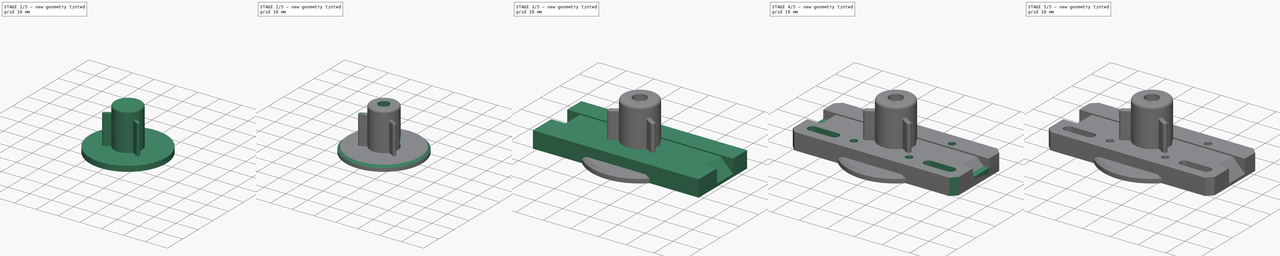
[diagram: build sequence overview — one tinted view per stage of 5, left to right]
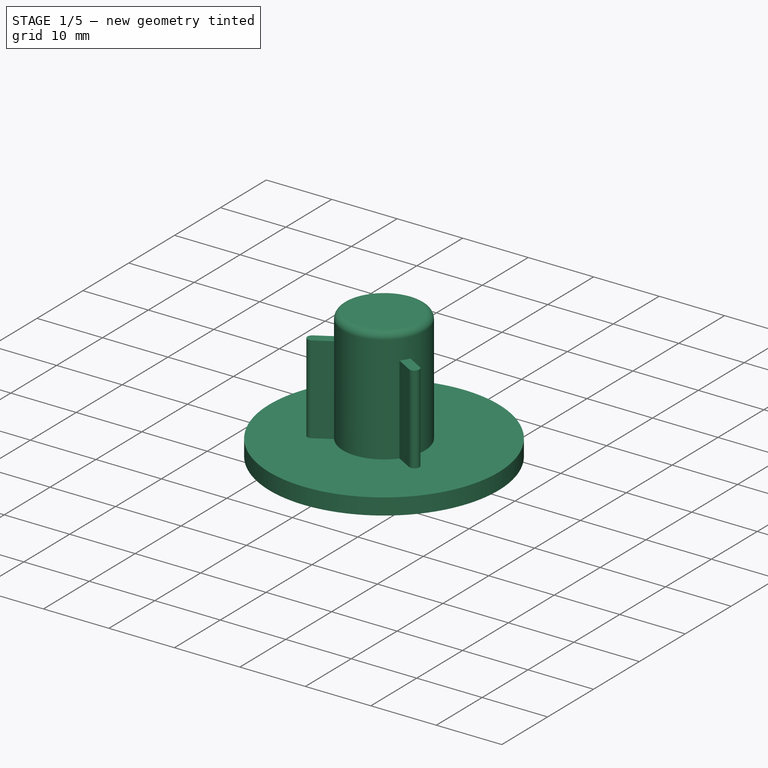
[diagram: stage 1 of 5 — iso view after this stage's code; geometry added in this stage tinted green]
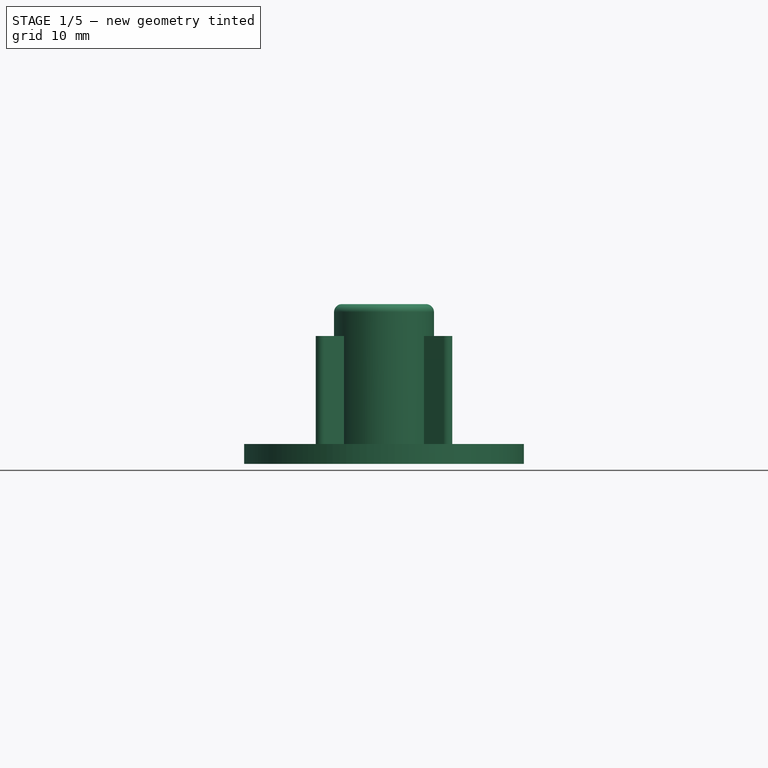
[diagram: stage 1 of 5 — front view after this stage's code; geometry added in this stage tinted green]
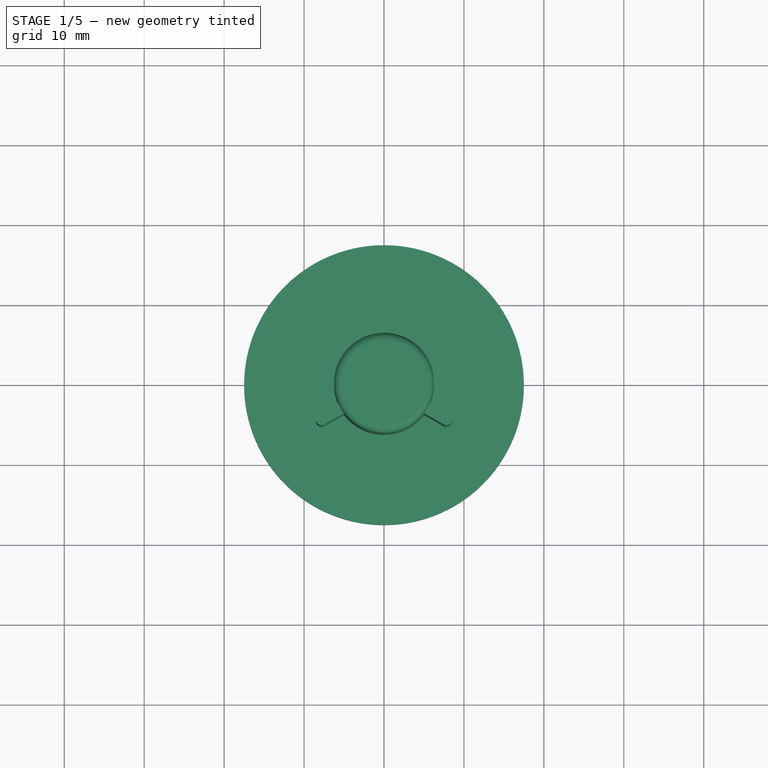
[diagram: stage 1 of 5 — top view after this stage's code; geometry added in this stage tinted green]
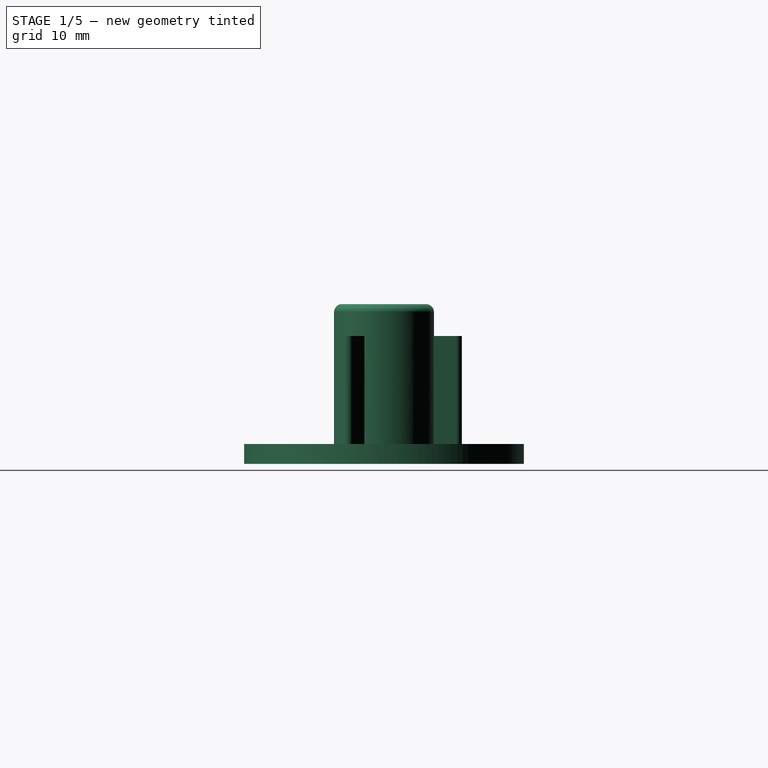
[diagram: stage 1 of 5 — right view after this stage's code; geometry added in this stage tinted green]
FCSTD DOCUMENT  (FreeCAD 2021.1015R24301 +4280 (Git))
Label: Super8FilmScanner
License: All rights reserved
LicenseURL: http://en.wikipedia.org/wiki/All_rights_reserved
objects: Sketcher::SketchObject×14, PartDesign::Pocket×7, PartDesign::Pad×5, PartDesign::Chamfer×5, PartDesign::Body×3, PartDesign::Hole×2, PartDesign::Fillet×1, PartDesign::Plane×1
note: 78 computed .brp shape members not serialized (recipe doc carries the construction recipe); baked Part::Feature solids carry a one-line shape summary decoded from their .brp

FEATURE [Sketcher::SketchObject] Sketch007
  FullyConstrained = true
  MapMode = 5
  Support = -> [XY_Plane002]
  sketch-geometry (1):
    g0: Circle CenterX=0 CenterY=0 CenterZ=0 NormalX=0 NormalY=0 NormalZ=1 AngleXU=0 Radius=6.25
  constraints (2):
    c: Coincident(g0,g-1)
    c: Diameter(g0) = 12.5
FEATURE [PartDesign::Pad] Pad002
  AddSubType = 0
  CheckUpToFaceLimits = true
  ClaimChildren = false
  Direction = (1,1,1)
  Fit = 0
  FitJoin = 0
  InnerFit = 0
  InnerFitJoin = 0
  InnerTaperAngle = 0
  InnerTaperAngleRev = 0
  Length = 20
  Length2 = 100
  Linearize = true
  NewSolid = false
  Profile = -> Sketch007
  Suppress = false
  Type = 0
  _ProfileBasedVersion = 1
FEATURE [Sketcher::SketchObject] Sketch008
  FullyConstrained = true
  MapMode = 5
  Support = -> [XY_Plane002]
  sketch-geometry (17):
    g0: LineSegment StartX=-0.75 StartY=0.433014 StartZ=0 EndX=-0.75 EndY=9 EndZ=0
    g1: LineSegment StartX=0.75 StartY=9 StartZ=0 EndX=0.75 EndY=0.433014 EndZ=0
    g2: LineSegment StartX=0.75 StartY=0.433014 StartZ=0 EndX=8.16922 EndY=-3.8505 EndZ=0
    g3: LineSegment StartX=7.41922 StartY=-5.14953 StartZ=0 EndX=0 EndY=-0.866024 EndZ=0
    g4: Circle [constr] CenterX=0 CenterY=0 CenterZ=0 NormalX=0 NormalY=0 NormalZ=1 AngleXU=0 Radius=6.25
    g5: Circle [constr] CenterX=0 CenterY=0 CenterZ=0 NormalX=0 NormalY=0 NormalZ=1 AngleXU=0 Radius=9.75
    g6: ArcOfCircle CenterX=0 CenterY=9 CenterZ=0 NormalX=0 NormalY=0 NormalZ=1 AngleXU=0 Radius=0.75 StartAngle=-9e-16 EndAngle=3.14159
    g7: ArcOfCircle CenterX=-7.79424 CenterY=-4.49998 CenterZ=0 NormalX=0 NormalY=0 NormalZ=1 AngleXU=0 Radius=0.75 StartAngle=2.09439 EndAngle=5.23599
    g8: ArcOfCircle CenterX=7.79422 CenterY=-4.50002 CenterZ=0 NormalX=0 NormalY=0 NormalZ=1 AngleXU=0 Radius=0.75 StartAngle=4.18879 EndAngle=7.33038
    g9: LineSegment [constr] StartX=0 StartY=0 StartZ=0 EndX=8.44374 EndY=-4.87502 EndZ=0
    g10: LineSegment [constr] StartX=0 StartY=0 StartZ=0 EndX=-8.44376 EndY=-4.87498 EndZ=0
    g11: GeomPoint [constr] X=0 Y=9.75 Z=0
    g12: LineSegment StartX=-8.16924 StartY=-3.85046 StartZ=0 EndX=-0.75 EndY=0.433014 EndZ=0
    g13: LineSegment StartX=-7.41924 StartY=-5.1495 StartZ=0 EndX=0 EndY=-0.866024 EndZ=0
    g14: LineSegment [constr] StartX=-0.75 StartY=0.433014 StartZ=0 EndX=0.75 EndY=0.433014 EndZ=0
    g15: LineSegment [constr] StartX=0 StartY=-0.866024 StartZ=0 EndX=0.75 EndY=0.433014 EndZ=0
    g16: LineSegment [constr] StartX=0 StartY=-0.866024 StartZ=0 EndX=-0.75 EndY=0.433014 EndZ=0
  constraints (45):
    c: Vertical(g0)
    c: Vertical(g1)
    c: Symmetric(g0,g1,g-2)
    c: DistanceX(g0,g1) = 1.5
    c: Coincident(g4,g-1)
    c: Diameter(g4) = 12.5
    c: Horizontal(g1,g0)
    c: Coincident(g5,g4)
    c: Diameter(g5) = 19.5
    c: Coincident(g6,g0)
    c: Coincident(g6,g1)
    c: Coincident(g8,g3)
    c: Coincident(g8,g2)
    c: Coincident(g9,g4)
    c: Coincident(g10,g9)
    c: Horizontal(g0,g6)
    c: PointOnObject(g11,g6)
    c: Vertical(g11,g4)
    c: PointOnObject(g11,g5)
    c: Distance(g3,g2) = 1.5
    c: Distance(g7,g7) = 1.5
    c: PointOnObject(g10,g5)
    c: PointOnObject(g9,g5)
    c: Symmetric(g3,g2,g9)
    c: Parallel(g3,g2)
    c: Symmetric(g7,g7,g10)
    c: PointOnObject(g9,g8)
    c: Coincident(g12,g7)
    c: Coincident(g13,g7)
    c: Parallel(g13,g12)
    c: Parallel(g12,g10)
    c: PointOnObject(g10,g7)
    c: Coincident(g2,g1)
    c: Coincident(g3,g13)
    c: Coincident(g12,g0)
    c: Diameter(g7) = 1.5
    c: Diameter(g8) = 1.5
    c: Coincident(g14,g0)
    c: Coincident(g14,g1)
    c: Coincident(g15,g3)
    c: Coincident(g15,g1)
    c: Coincident(g16,g3)
    c: Coincident(g16,g0)
    c: Vertical(g16,g4)
    c: Equal(g15,g14)
FEATURE [Sketcher::SketchObject] Sketch009
  FullyConstrained = true
  Placement = pos=(0,0,20) rot=(0,0,1;0.523599rad)
  sketch-geometry (3):
    g0: Circle [constr] CenterX=0 CenterY=0 CenterZ=0 NormalX=0 NormalY=0 NormalZ=1 AngleXU=0 Radius=2.5
    g1: ArcOfCircle CenterX=1e-16 CenterY=-2e-16 CenterZ=0 NormalX=0 NormalY=0 NormalZ=1 AngleXU=0 Radius=2.5 StartAngle=0.451027 EndAngle=5.83216
    g2: LineSegment StartX=2.25 StartY=1.08972 StartZ=0 EndX=2.25 EndY=-1.08972 EndZ=0
  constraints (9):
    c: Coincident(g0,g-1)
    c: Diameter(g0) = 5
    c: PointOnObject(g1,g0)
    c: PointOnObject(g1,g0)
    c: Tangent(g1,g0)
    c: Coincident(g2,g1)
    c: Coincident(g2,g1)
    c: Vertical(g2)
    c: DistanceX(g1,g1) = 2.25
FEATURE [Sketcher::SketchObject] Sketch010  label="OuterCircle"
  FullyConstrained = true
  MapMode = 5
  Support = -> [XY_Plane002]
  sketch-geometry (1):
    g0: Circle CenterX=0 CenterY=0 CenterZ=0 NormalX=0 NormalY=0 NormalZ=1 AngleXU=0 Radius=17.5
  constraints (2):
    c: Coincident(g0,g-1)
    c: Diameter(g0) = 35
FEATURE [PartDesign::Pad] Pad004
  AddSubType = 0
  BaseFeature = -> Pad002
  CheckUpToFaceLimits = true
  ClaimChildren = false
  Direction = (1,1,1)
  Fit = 0
  FitJoin = 0
  InnerFit = 0
  InnerFitJoin = 0
  InnerTaperAngle = 0
  InnerTaperAngleRev = 0
  Length = 2.5
  Length2 = 100
  Linearize = true
  NewSolid = false
  Profile = -> Sketch010
  Suppress = false
  Type = 0
  _ProfileBasedVersion = 1
FEATURE [PartDesign::Pad] Pad003
  AddSubType = 0
  BaseFeature = -> Pad004
  CheckUpToFaceLimits = true
  ClaimChildren = false
  Direction = (1,1,1)
  Fit = 0
  FitJoin = 0
  InnerFit = 0
  InnerFitJoin = 0
  InnerTaperAngle = 0
  InnerTaperAngleRev = 0
  Length = 16
  Length2 = 100
  Linearize = true
  NewSolid = false
  Profile = -> Sketch008
  Suppress = false
  Type = 0
  _ProfileBasedVersion = 1
FEATURE [PartDesign::Fillet] Fillet
  AddSubType = 0
  Base = -> Pad003 [Face21]
  BaseFeature = -> Pad003
  NewSolid = false
  Radius = 1
  SupportTransform = false
  Suppress = false
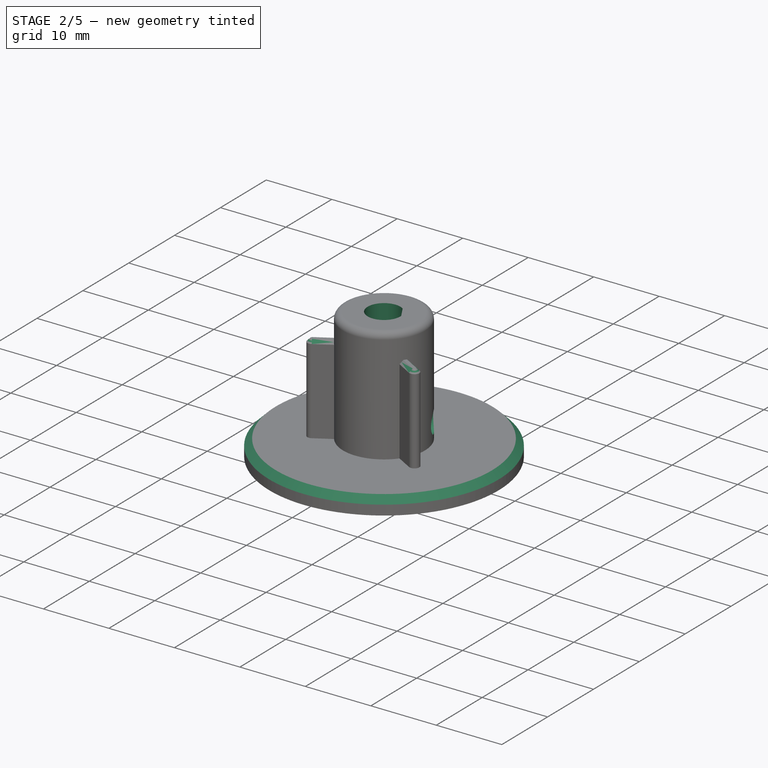
[diagram: stage 2 of 5 — iso view after this stage's code; geometry added in this stage tinted green]
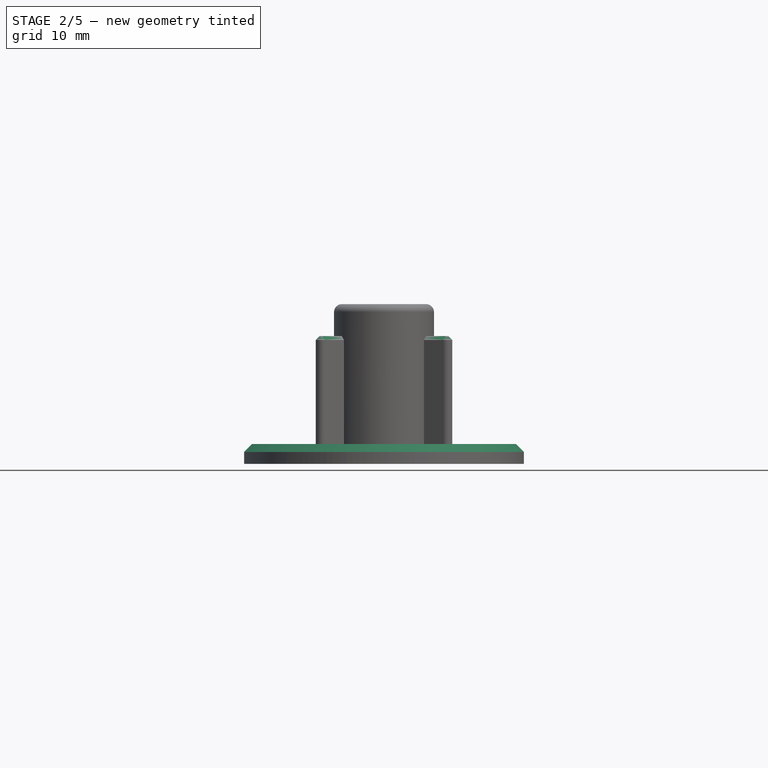
[diagram: stage 2 of 5 — front view after this stage's code; geometry added in this stage tinted green]
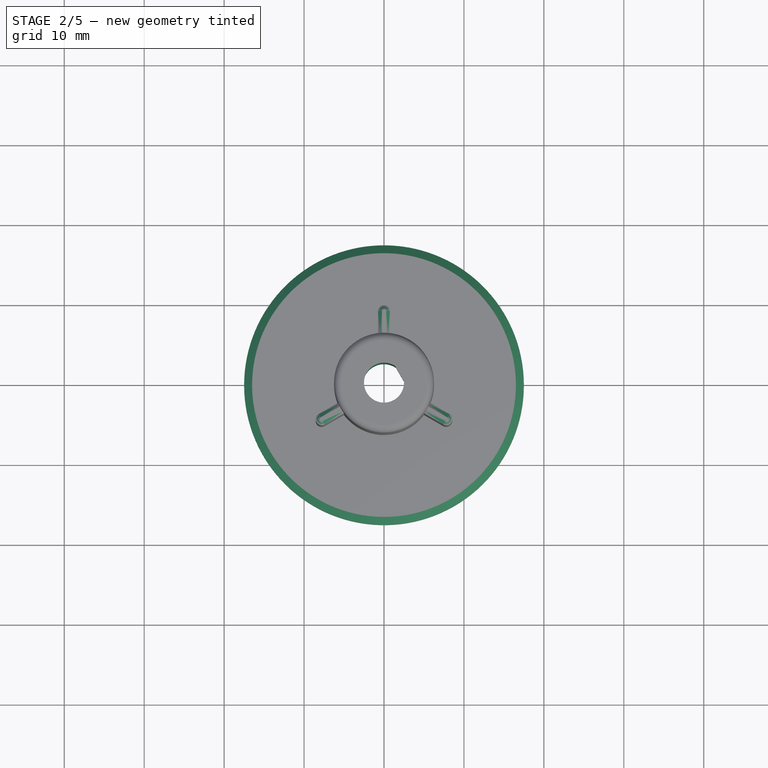
[diagram: stage 2 of 5 — top view after this stage's code; geometry added in this stage tinted green]
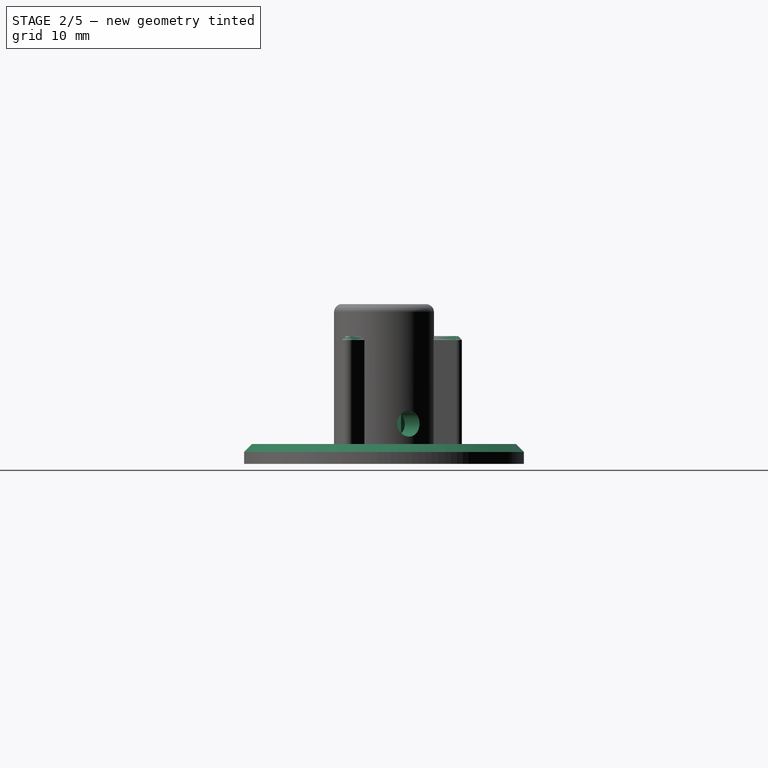
[diagram: stage 2 of 5 — right view after this stage's code; geometry added in this stage tinted green]
FEATURE [PartDesign::Chamfer] Chamfer003
  AddSubType = 0
  Angle = 45
  Base = -> Fillet [Edge30,Edge36,Edge41]
  BaseFeature = -> Fillet
  ChamferType = 2
  FlipDirection = false
  NewSolid = false
  Size = 0.5
  Size2 = 1
  SupportTransform = false
  Suppress = false
FEATURE [PartDesign::Chamfer] Chamfer004
  AddSubType = 0
  Angle = 45
  Base = -> Chamfer003 [Edge27]
  BaseFeature = -> Chamfer003
  ChamferType = 0
  FlipDirection = false
  NewSolid = false
  Size = 1
  Size2 = 1
  SupportTransform = false
  Suppress = false
FEATURE [PartDesign::Pocket] Pocket003
  AddSubType = 1
  BaseFeature = -> Chamfer004
  CheckUpToFaceLimits = true
  ClaimChildren = false
  Fit = 0
  FitJoin = 2
  InnerFit = 0
  InnerFitJoin = 0
  InnerTaperAngle = 0
  InnerTaperAngleRev = 0
  Length = 20
  Length2 = 100
  Linearize = true
  NewSolid = false
  Profile = -> Sketch009
  Suppress = false
  TaperAngle = 0.4
  Type = 0
  _ProfileBasedVersion = 1
  _Version = 1
FEATURE [PartDesign::Body] Body  label="Body-Gate-Back"
  AutoGroupSolids = false
  ExportMode = 0
  Group = -> [Sketch,Pad,Sketch001,Pocket,Sketch002,Pocket001,Chamfer,Sketch006,Hole001,Chamfer002,Sketch015,Pocket006]
  Origin = -> Origin
  Tip = -> Pocket006
  _ExportChildren = -> [Pad,Pocket,Pocket001,Chamfer,Hole001,Chamfer002,Pocket006]
  _GroupVersion = 1
FEATURE [PartDesign::Plane] DatumPlane001
  AttachmentOffset = pos=(0,0,-5) rot=(0,0,1;0rad)
  Length = 47.7614
  MapMode = 5
  MinimumLength = 10
  MinimumWidth = 10
  Placement = pos=(6.3994,3.6947,0.0515885) rot=(0.775304,-0.449707,-0.443472;1.8271rad)
  ResizeMode = 0
  Support = -> [Pocket003]
  Width = 20.2815
FEATURE [Sketcher::SketchObject] Sketch016
  FullyConstrained = true
  MapMode = 5
  Placement = pos=(6.3994,3.6947,0.0515885) rot=(0.775304,-0.449707,-0.443472;1.8271rad)
  Support = -> [DatumPlane001]
  sketch-geometry (1):
    g0: Circle CenterX=0 CenterY=5 CenterZ=0 NormalX=0 NormalY=0 NormalZ=1 AngleXU=0 Radius=1.625
  constraints (3):
    c: PointOnObject(g0,g-2)
    c: Diameter(g0) = 3.25
    c: DistanceY(g-1,g0) = 5
FEATURE [PartDesign::Pocket] Pocket007
  AddSubType = 1
  BaseFeature = -> Pocket003
  CheckUpToFaceLimits = true
  ClaimChildren = false
  Fit = 0
  FitJoin = 0
  InnerFit = 0
  InnerFitJoin = 0
  InnerTaperAngle = 0
  InnerTaperAngleRev = 0
  Length = 5
  Length2 = 100
  Linearize = true
  NewSolid = false
  Profile = -> Sketch016
  Reversed = true
  Suppress = false
  Type = 0
  _ProfileBasedVersion = 1
  _Version = 1
FEATURE [PartDesign::Body] Body002  label="Body-TapeWheel"
  AutoGroupSolids = false
  ExportMode = 0
  Group = -> [Sketch007,Pad002,Pad004,Sketch008,Pad003,Fillet,Sketch009,Chamfer003,Sketch010,Chamfer004,Pocket003,DatumPlane001,Sketch016,Pocket007]
  Origin = -> Origin002
  Tip = -> Pocket007
  _ExportChildren = -> [Pad002,Pad004,Pad003,Fillet,Chamfer003,Chamfer004,Pocket003,DatumPlane001,Pocket007]
  _GroupVersion = 1
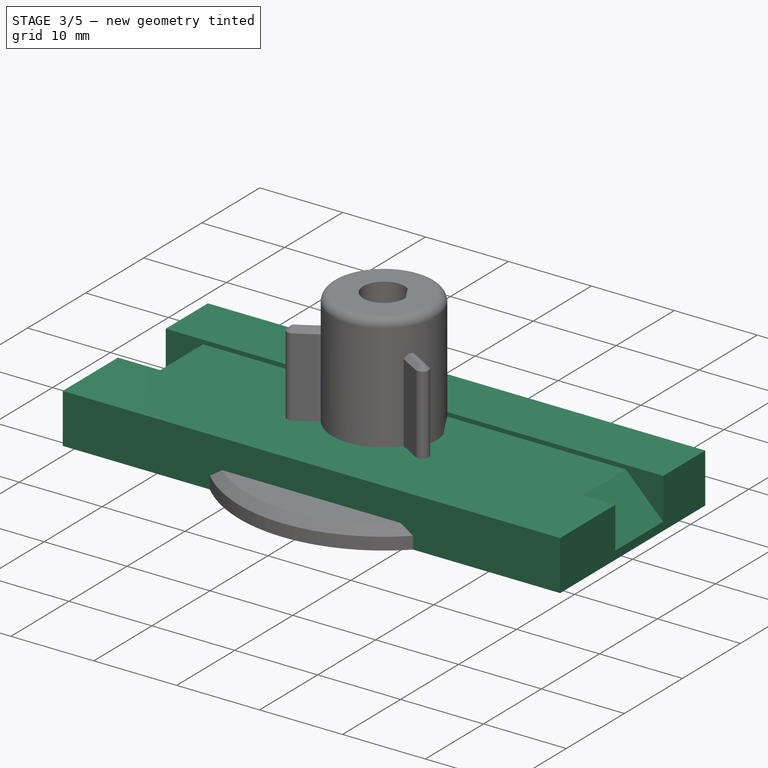
[diagram: stage 3 of 5 — iso view after this stage's code; geometry added in this stage tinted green]
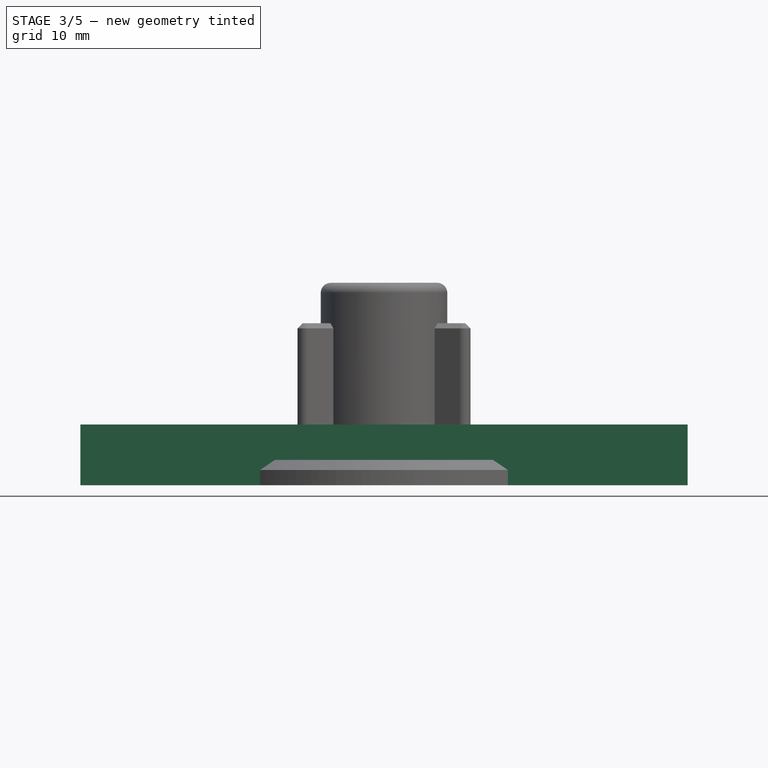
[diagram: stage 3 of 5 — front view after this stage's code; geometry added in this stage tinted green]
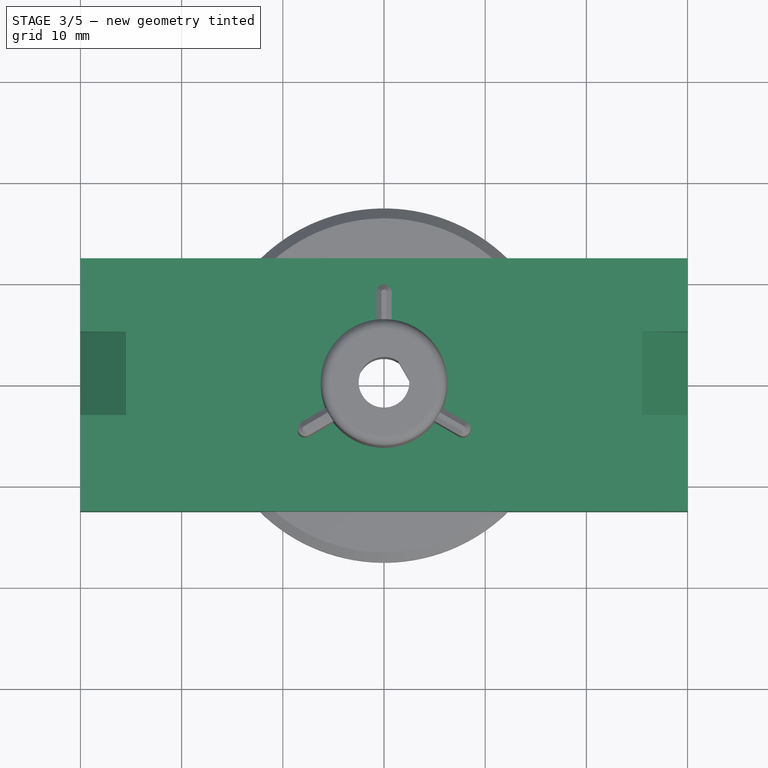
[diagram: stage 3 of 5 — top view after this stage's code; geometry added in this stage tinted green]
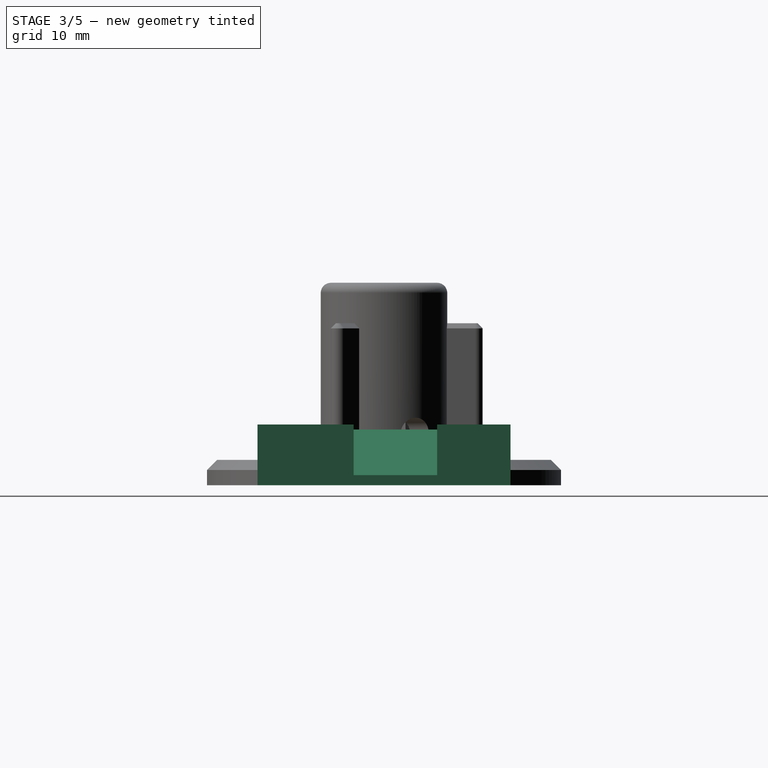
[diagram: stage 3 of 5 — right view after this stage's code; geometry added in this stage tinted green]
FEATURE [Sketcher::SketchObject] Sketch
  FullyConstrained = true
  MapMode = 5
  Support = -> [XY_Plane]
  sketch-geometry (8):
    g0: LineSegment StartX=-30 StartY=12.5 StartZ=0 EndX=30 EndY=12.5 EndZ=0
    g1: LineSegment StartX=30 StartY=12.5 StartZ=0 EndX=30 EndY=-12.5 EndZ=0
    g2: LineSegment StartX=30 StartY=-12.5 StartZ=0 EndX=-30 EndY=-12.5 EndZ=0
    g3: LineSegment StartX=-30 StartY=-12.5 StartZ=0 EndX=-30 EndY=12.5 EndZ=0
    g4: LineSegment [constr] StartX=-30 StartY=4.125 StartZ=0 EndX=30 EndY=4.125 EndZ=0
    g5: LineSegment [constr] StartX=30 StartY=4.125 StartZ=0 EndX=30 EndY=-4.125 EndZ=0
    g6: LineSegment [constr] StartX=30 StartY=-4.125 StartZ=0 EndX=-30 EndY=-4.125 EndZ=0
    g7: LineSegment [constr] StartX=-30 StartY=-4.125 StartZ=0 EndX=-30 EndY=4.125 EndZ=0
  constraints (21):
    c: Coincident(g0,g1)
    c: Coincident(g1,g2)
    c: Coincident(g2,g3)
    c: Coincident(g3,g0)
    c: Horizontal(g2)
    c: Vertical(g1)
    c: Symmetric(g0,g2,g-1)
    c: Symmetric(g0,g0,g-2)
    c: DistanceY(g1,g1) = 25
    c: DistanceX(g2,g2) = 60
    c: Coincident(g4,g5)
    c: Coincident(g5,g6)
    c: Coincident(g6,g7)
    c: Coincident(g7,g4)
    c: Horizontal(g4)
    c: Horizontal(g6)
    c: Vertical(g5)
    c: Vertical(g7)
    c: DistanceY(g5,g5) = 8.25
    c: Symmetric(g4,g5,g-1)
    c: Vertical(g6,g2)
FEATURE [PartDesign::Pad] Pad
  AddSubType = 0
  CheckUpToFaceLimits = true
  ClaimChildren = false
  Direction = (1,1,1)
  Fit = 0
  FitJoin = 0
  InnerFit = 0
  InnerFitJoin = 0
  InnerTaperAngle = 0
  InnerTaperAngleRev = 0
  Length = 6
  Length2 = 100
  Linearize = true
  NewSolid = false
  Profile = -> Sketch
  Suppress = false
  Type = 0
  _ProfileBasedVersion = 1
FEATURE [Sketcher::SketchObject] Sketch001
  AttachmentOffset = pos=(0,0,5.5) rot=(0,0,1;0rad)
  FullyConstrained = true
  MapMode = 5
  Placement = pos=(0,0,5.5) rot=(0,0,1;0rad)
  Support = -> [XY_Plane]
  sketch-geometry (4):
    g0: LineSegment StartX=-32.5 StartY=5.25 StartZ=0 EndX=32.5 EndY=5.25 EndZ=0
    g1: LineSegment StartX=32.5 StartY=5.25 StartZ=0 EndX=32.5 EndY=-3 EndZ=0
    g2: LineSegment StartX=32.5 StartY=-3 StartZ=0 EndX=-32.5 EndY=-3 EndZ=0
    g3: LineSegment StartX=-32.5 StartY=-3 StartZ=0 EndX=-32.5 EndY=5.25 EndZ=0
  constraints (11):
    c: Coincident(g0,g1)
    c: Coincident(g1,g2)
    c: Coincident(g2,g3)
    c: Coincident(g3,g0)
    c: Vertical(g1)
    c: DistanceY(g3,g3) = 8.25
    c: DistanceX(g0,g0) = 65
    c: Symmetric(g2,g1,g-2)
    c: Vertical(g3)
    c: Horizontal(g0)
    c: DistanceY(g1,g-1) = 3
FEATURE [PartDesign::Pocket] Pocket
  AddSubType = 1
  BaseFeature = -> Pad
  CheckUpToFaceLimits = true
  ClaimChildren = false
  Fit = 0
  FitJoin = 0
  InnerFit = 0
  InnerFitJoin = 0
  InnerTaperAngle = 0
  InnerTaperAngleRev = 0
  Length = 1
  Length2 = 100
  Linearize = true
  NewSolid = false
  Profile = -> Sketch001
  Reversed = true
  Suppress = false
  Type = 0
  _ProfileBasedVersion = 1
  _Version = 1
FEATURE [Sketcher::SketchObject] Sketch002  label="Gatehole"
  FullyConstrained = true
  MapMode = 5
  Support = -> [XY_Plane]
  sketch-geometry (4):
    g0: LineSegment StartX=-3 StartY=4.75 StartZ=0 EndX=3 EndY=4.75 EndZ=0
    g1: LineSegment StartX=3 StartY=4.75 StartZ=0 EndX=3 EndY=-2.75 EndZ=0
    g2: LineSegment StartX=3 StartY=-2.75 StartZ=0 EndX=-3 EndY=-2.75 EndZ=0
    g3: LineSegment StartX=-3 StartY=-2.75 StartZ=0 EndX=-3 EndY=4.75 EndZ=0
  constraints (11):
    c: Coincident(g0,g1)
    c: Coincident(g1,g2)
    c: Coincident(g2,g3)
    c: Coincident(g3,g0)
    c: Vertical(g1)
    c: DistanceY(g1,g1) = 7.5
    c: DistanceX(g0,g0) = 6
    c: Horizontal(g0)
    c: Vertical(g3)
    c: Symmetric(g1,g2,g-2)
    c: DistanceY(g2,g-1) = 2.75
FEATURE [PartDesign::Pocket] Pocket001  label="pkt_GateHole"
  AddSubType = 1
  BaseFeature = -> Pocket
  CheckUpToFaceLimits = true
  ClaimChildren = false
  Fit = 0
  FitJoin = 0
  InnerFit = 0
  InnerFitJoin = 0
  InnerTaperAngle = 0
  InnerTaperAngleRev = 0
  Length = 10
  Length2 = 100
  Linearize = true
  NewSolid = false
  Profile = -> Sketch002
  Reversed = true
  Suppress = false
  Type = 0
  _ProfileBasedVersion = 1
  _Version = 1
FEATURE [PartDesign::Chamfer] Chamfer
  AddSubType = 0
  Angle = 45
  Base = -> Pocket001 [Edge23,Edge20,Edge21,Edge22,Edge8,Edge16]
  BaseFeature = -> Pocket001
  ChamferType = 0
  FlipDirection = false
  NewSolid = false
  Size = 4.5
  Size2 = 1
  SupportTransform = false
  Suppress = false
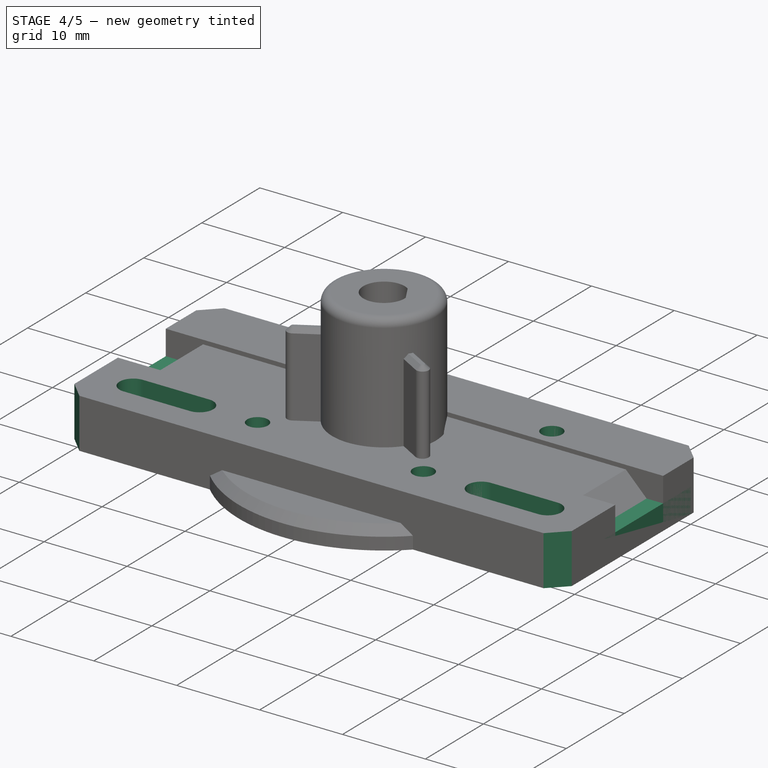
[diagram: stage 4 of 5 — iso view after this stage's code; geometry added in this stage tinted green]
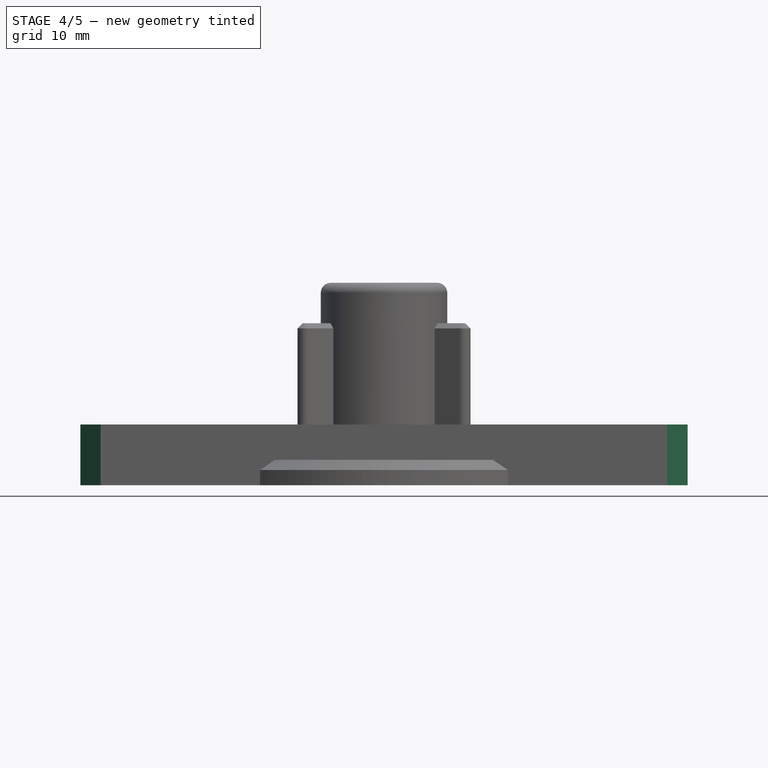
[diagram: stage 4 of 5 — front view after this stage's code; geometry added in this stage tinted green]
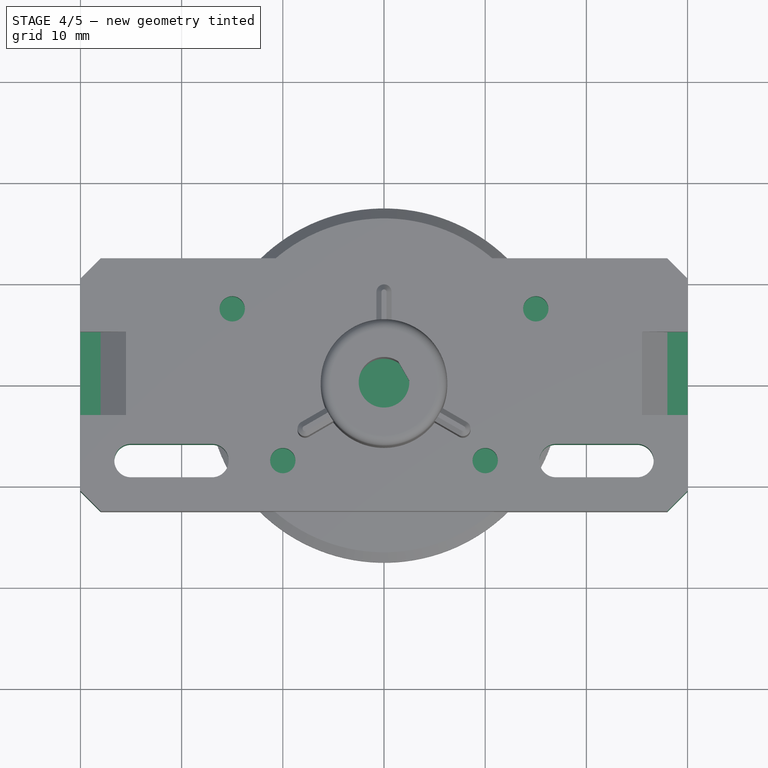
[diagram: stage 4 of 5 — top view after this stage's code; geometry added in this stage tinted green]
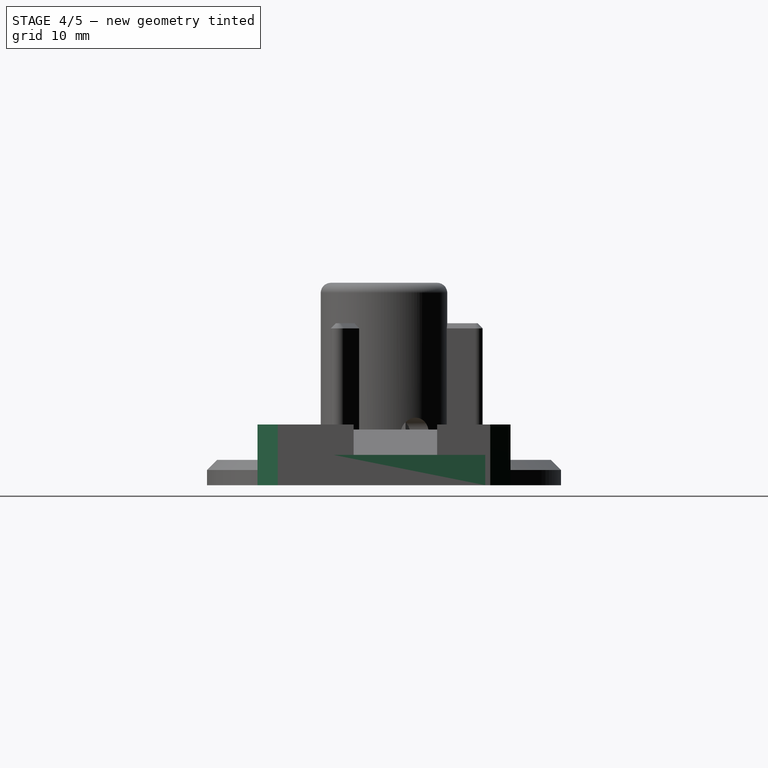
[diagram: stage 4 of 5 — right view after this stage's code; geometry added in this stage tinted green]
FEATURE [Sketcher::SketchObject] Sketch003
  FullyConstrained = true
  MapMode = 5
  Support = -> [XY_Plane001]
  sketch-geometry (11):
    g0: LineSegment StartX=-30 StartY=10 StartZ=0 EndX=30 EndY=10 EndZ=0
    g1: LineSegment [constr] StartX=30 StartY=10 StartZ=0 EndX=30 EndY=-10 EndZ=0
    g2: LineSegment [constr] StartX=30 StartY=-10 StartZ=0 EndX=-30 EndY=-10 EndZ=0
    g3: LineSegment [constr] StartX=-30 StartY=-10 StartZ=0 EndX=-30 EndY=10 EndZ=0
    g4: LineSegment StartX=-30 StartY=10 StartZ=0 EndX=-30 EndY=-5 EndZ=0
    g5: LineSegment StartX=-30 StartY=-5 StartZ=0 EndX=-15 EndY=-5 EndZ=0
    g6: LineSegment StartX=-15 StartY=-5 StartZ=0 EndX=-15 EndY=-10 EndZ=0
    g7: LineSegment StartX=-15 StartY=-10 StartZ=0 EndX=15 EndY=-10 EndZ=0
    g8: LineSegment StartX=15 StartY=-10 StartZ=0 EndX=15 EndY=-5 EndZ=0
    g9: LineSegment StartX=15 StartY=-5 StartZ=0 EndX=30 EndY=-5 EndZ=0
    g10: LineSegment StartX=30 StartY=-5 StartZ=0 EndX=30 EndY=10 EndZ=0
  constraints (30):
    c: Coincident(g0,g1)
    c: Coincident(g1,g2)
    c: Coincident(g2,g3)
    c: Coincident(g3,g0)
    c: Horizontal(g2)
    c: Vertical(g3)
    c: Symmetric(g0,g1,g-1)
    c: Symmetric(g0,g0,g-2)
    c: DistanceY(g1,g1) = 20
    c: DistanceX(g0,g0) = 60
    c: Coincident(g4,g0)
    c: PointOnObject(g4,g3)
    c: Coincident(g5,g4)
    c: Horizontal(g5)
    c: Coincident(g6,g5)
    c: PointOnObject(g6,g2)
    c: Vertical(g6)
    c: Coincident(g7,g6)
    c: PointOnObject(g7,g2)
    c: Coincident(g8,g7)
    c: Coincident(g9,g8)
    c: PointOnObject(g9,g1)
    c: Horizontal(g9)
    c: Coincident(g10,g9)
    c: Coincident(g10,g0)
    c: Vertical(g8)
    c: Equal(g5,g9)
    c: DistanceX(g5,g8) = 30
    c: DistanceY(g6,g6) = 5
    c: Equal(g8,g6)
FEATURE [PartDesign::Pad] Pad001
  AddSubType = 0
  CheckUpToFaceLimits = true
  ClaimChildren = false
  Direction = (1,1,1)
  Fit = 0
  FitJoin = 0
  InnerFit = 0
  InnerFitJoin = 0
  InnerTaperAngle = 0
  InnerTaperAngleRev = 0
  Length = 3
  Length2 = 100
  Linearize = true
  NewSolid = false
  Profile = -> Sketch003
  Suppress = false
  Type = 0
  _ProfileBasedVersion = 1
FEATURE [Sketcher::SketchObject] Sketch006
  FullyConstrained = true
  MapMode = 5
  Support = -> [XY_Plane]
  sketch-geometry (4):
    g0: Circle CenterX=-15 CenterY=7.5 CenterZ=0 NormalX=0 NormalY=0 NormalZ=1 AngleXU=0 Radius=1.5
    g1: Circle CenterX=15 CenterY=7.5 CenterZ=0 NormalX=0 NormalY=0 NormalZ=1 AngleXU=0 Radius=1.5
    g2: Circle CenterX=-10 CenterY=-7.5 CenterZ=0 NormalX=0 NormalY=0 NormalZ=1 AngleXU=0 Radius=1.5
    g3: Circle CenterX=10 CenterY=-7.5 CenterZ=0 NormalX=0 NormalY=0 NormalZ=1 AngleXU=0 Radius=1.5
  constraints (10):
    c: Diameter(g1) = 3
    c: DistanceX(g0,g1) = 30
    c: DistanceY(g-1,g0) = 7.5
    c: Equal(g0,g1)
    c: Symmetric(g0,g1,g-2)
    c: Symmetric(g2,g3,g-2)
    c: DistanceX(g2,g3) = 20
    c: Diameter(g2) = 3
    c: Equal(g2,g3)
    c: DistanceY(g2,g-1) = 7.5
FEATURE [PartDesign::Hole] Hole001
  AddSubType = 1
  BaseFeature = -> Chamfer
  ClaimChildren = false
  CustomThreadClearance = 0
  Depth = 15
  DepthType = 0
  Diameter = 2.5
  DrillForDepth = false
  DrillPoint = 0
  DrillPointAngle = 118
  Fit = 0
  FitJoin = 0
  HoleCutCountersinkAngle = 90
  HoleCutCustomValues = false
  HoleCutDepth = 0
  HoleCutDiameter = 6.1
  HoleCutType = 0
  InnerFit = 0
  InnerFitJoin = 0
  ModelThread = false
  NewSolid = false
  Profile = -> Sketch006
  Reversed = true
  Suppress = false
  Tapered = false
  TaperedAngle = 90
  ThreadClass = 0
  ThreadDepth = 15
  ThreadDepthType = 0
  ThreadDirection = 0
  ThreadFit = 0
  ThreadSize = 9
  ThreadType = 1
  Threaded = true
  UseCustomThreadClearance = false
  _ProfileBasedVersion = 1
FEATURE [PartDesign::Chamfer] Chamfer002
  AddSubType = 0
  Angle = 45
  Base = -> Hole001 [Edge6,Edge10,Edge28,Edge44]
  BaseFeature = -> Hole001
  ChamferType = 0
  FlipDirection = false
  NewSolid = false
  Size = 2
  Size2 = 1
  SupportTransform = false
  Suppress = false
FEATURE [PartDesign::Body] Body001  label="Body-Gate-Front"
  AutoGroupSolids = false
  ExportMode = 0
  Group = -> [Sketch003,Pad001,Sketch004,Pocket002,Sketch005,Hole,Chamfer001,Sketch014,Pocket005]
  Origin = -> Origin001
  Tip = -> Pocket005
  _ExportChildren = -> [Pad001,Pocket002,Hole,Chamfer001,Pocket005]
  _GroupVersion = 1
FEATURE [Sketcher::SketchObject] Sketch015
  FullyConstrained = true
  MapMode = 5
  sketch-geometry (8):
    g0: ArcOfCircle CenterX=-25 CenterY=-7.5 CenterZ=0 NormalX=0 NormalY=0 NormalZ=1 AngleXU=0 Radius=1.65 StartAngle=1.5708 EndAngle=4.71239
    g1: ArcOfCircle CenterX=-17 CenterY=-7.5 CenterZ=0 NormalX=0 NormalY=0 NormalZ=1 AngleXU=0 Radius=1.65 StartAngle=4.71239 EndAngle=7.85398
    g2: LineSegment StartX=-25 StartY=-9.15 StartZ=0 EndX=-17 EndY=-9.15 EndZ=0
    g3: LineSegment StartX=-25 StartY=-5.85 StartZ=0 EndX=-17 EndY=-5.85 EndZ=0
    g4: ArcOfCircle CenterX=17 CenterY=-7.5 CenterZ=0 NormalX=0 NormalY=0 NormalZ=1 AngleXU=0 Radius=1.65 StartAngle=1.5708 EndAngle=4.71239
    g5: ArcOfCircle CenterX=25 CenterY=-7.5 CenterZ=0 NormalX=0 NormalY=0 NormalZ=1 AngleXU=0 Radius=1.65 StartAngle=4.71239 EndAngle=7.85398
    g6: LineSegment StartX=17 StartY=-9.15 StartZ=0 EndX=25 EndY=-9.15 EndZ=0
    g7: LineSegment StartX=17 StartY=-5.85 StartZ=0 EndX=25 EndY=-5.85 EndZ=0
  constraints (19):
    c: Tangent(g0,g3) = 1.5708
    c: Tangent(g0,g2) = -1.5708
    c: Tangent(g2,g1) = -1.5708
    c: Tangent(g3,g1) = 1.5708
    c: Horizontal(g2)
    c: Equal(g0,g1)
    c: Tangent(g4,g7) = 1.5708
    c: Tangent(g4,g6) = -1.5708
    c: Tangent(g6,g5) = -1.5708
    c: Tangent(g7,g5) = 1.5708
    c: Horizontal(g6)
    c: Equal(g4,g5)
    c: Symmetric(g1,g4,g-2)
    c: DistanceY(g1,g-1) = 7.5
    c: DistanceY(g0,g0) = 3.3
    c: DistanceX(g3,g3) = 8
    c: Equal(g7,g3)
    c: DistanceX(g1,g4) = 34
    c: Horizontal(g1,g4)
FEATURE [PartDesign::Pocket] Pocket006
  AddSubType = 1
  BaseFeature = -> Chamfer002
  CheckUpToFaceLimits = true
  ClaimChildren = false
  Fit = 0
  FitJoin = 0
  InnerFit = 0
  InnerFitJoin = 0
  InnerTaperAngle = 0
  InnerTaperAngleRev = 0
  Length = 10
  Length2 = 100
  Linearize = true
  NewSolid = false
  Profile = -> Sketch015
  Reversed = true
  Suppress = false
  Type = 0
  _ProfileBasedVersion = 1
  _Version = 1
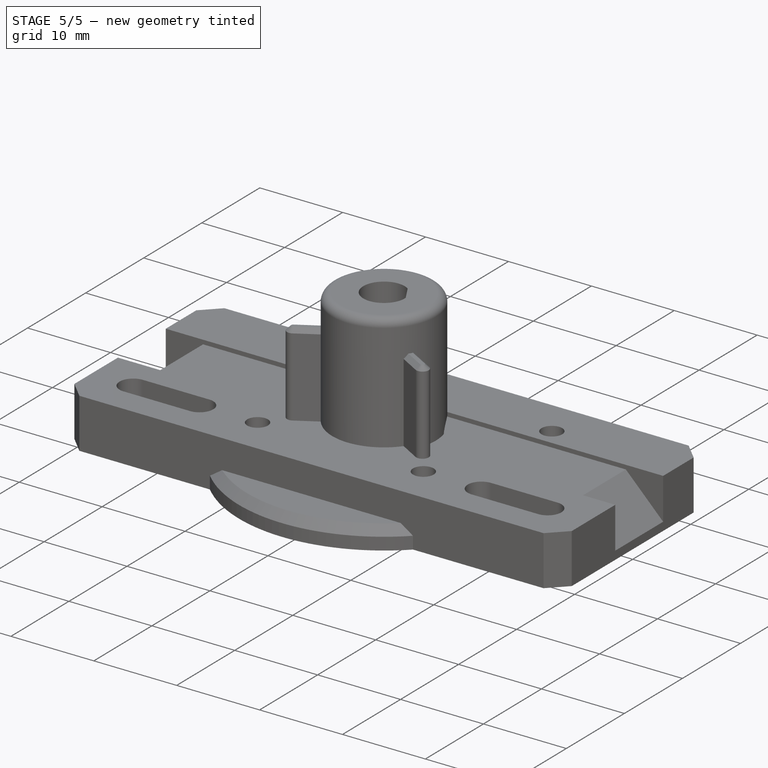
[diagram: stage 5 of 5 — iso view after this stage's code; geometry added in this stage tinted green]
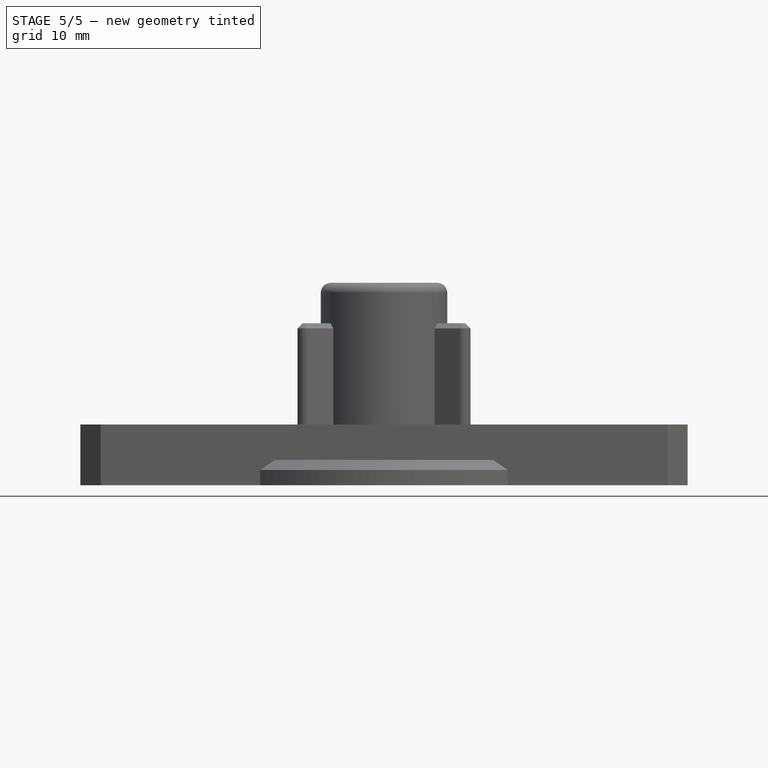
[diagram: stage 5 of 5 — front view after this stage's code; geometry added in this stage tinted green]
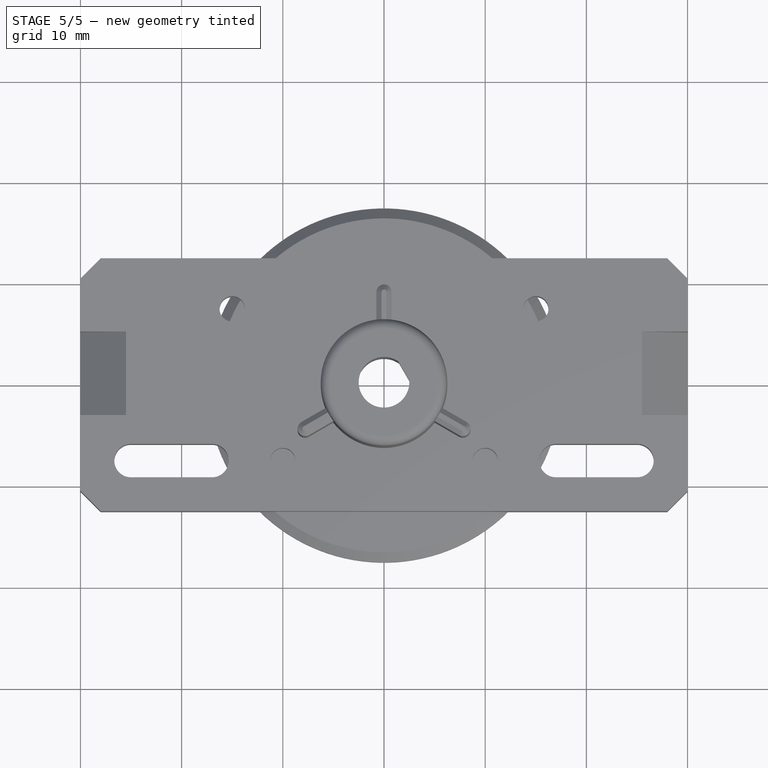
[diagram: stage 5 of 5 — top view after this stage's code; geometry added in this stage tinted green]
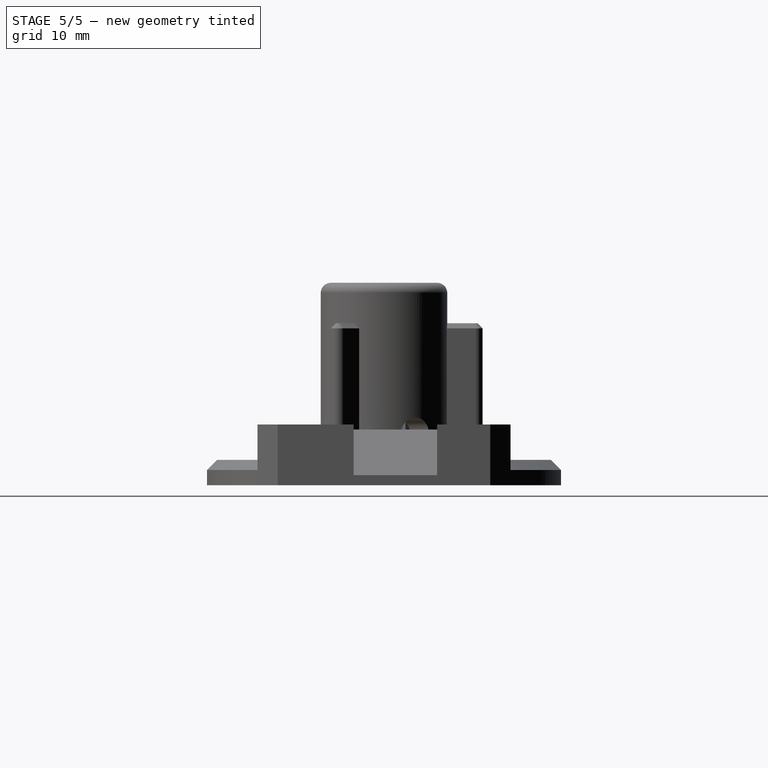
[diagram: stage 5 of 5 — right view after this stage's code; geometry added in this stage tinted green]
FEATURE [Sketcher::SketchObject] Sketch004  label="GateHole"
  FullyConstrained = true
  MapMode = 5
  Support = -> [XY_Plane001]
  sketch-geometry (4):
    g0: LineSegment StartX=-3 StartY=5 StartZ=0 EndX=3 EndY=5 EndZ=0
    g1: LineSegment StartX=3 StartY=5 StartZ=0 EndX=3 EndY=-3 EndZ=0
    g2: LineSegment StartX=3 StartY=-3 StartZ=0 EndX=-3 EndY=-3 EndZ=0
    g3: LineSegment StartX=-3 StartY=-3 StartZ=0 EndX=-3 EndY=5 EndZ=0
  constraints (11):
    c: Coincident(g0,g1)
    c: Coincident(g1,g2)
    c: Coincident(g2,g3)
    c: Coincident(g3,g0)
    c: Vertical(g3)
    c: DistanceX(g0,g0) = 6
    c: DistanceY(g1,g1) = 8
    c: Horizontal(g0)
    c: Vertical(g1)
    c: Symmetric(g2,g1,g-2)
    c: DistanceY(g1,g-1) = 3
FEATURE [PartDesign::Pocket] Pocket002  label="pktGateHole"
  AddSubType = 1
  BaseFeature = -> Pad001
  CheckUpToFaceLimits = true
  ClaimChildren = false
  Fit = 0
  FitJoin = 0
  InnerFit = 0
  InnerFitJoin = 0
  InnerTaperAngle = 0
  InnerTaperAngleRev = 0
  Length = 5
  Length2 = 100
  Linearize = true
  NewSolid = false
  Profile = -> Sketch004
  Reversed = true
  Suppress = false
  Type = 0
  _ProfileBasedVersion = 1
  _Version = 1
FEATURE [Sketcher::SketchObject] Sketch005
  FullyConstrained = true
  MapMode = 5
  Support = -> [XY_Plane001]
  sketch-geometry (4):
    g0: Circle CenterX=-15 CenterY=7.5 CenterZ=0 NormalX=0 NormalY=0 NormalZ=1 AngleXU=0 Radius=1.5
    g1: Circle CenterX=15 CenterY=7.5 CenterZ=0 NormalX=0 NormalY=0 NormalZ=1 AngleXU=0 Radius=1.5
    g2: Circle CenterX=-10 CenterY=-7.5 CenterZ=0 NormalX=0 NormalY=0 NormalZ=1 AngleXU=0 Radius=1.5
    g3: Circle CenterX=10 CenterY=-7.5 CenterZ=0 NormalX=0 NormalY=0 NormalZ=1 AngleXU=0 Radius=1.5
  constraints (10):
    c: Diameter(g1) = 3
    c: DistanceY(g-1,g0) = 7.5
    c: DistanceX(g0,g1) = 30
    c: Symmetric(g0,g1,g-2)
    c: Equal(g1,g0)
    c: DistanceX(g2,g3) = 20
    c: Equal(g2,g3)
    c: Symmetric(g2,g3,g-2)
    c: DistanceY(g2,g-1) = 7.5
    c: Diameter(g2) = 3
FEATURE [PartDesign::Hole] Hole
  AddSubType = 1
  BaseFeature = -> Pocket002
  ClaimChildren = false
  CustomThreadClearance = 0
  Depth = 25
  DepthType = 0
  Diameter = 3.4
  DrillForDepth = false
  DrillPoint = 0
  DrillPointAngle = 118
  Fit = 0
  FitJoin = 0
  HoleCutCountersinkAngle = 90
  HoleCutCustomValues = false
  HoleCutDepth = 0
  HoleCutDiameter = 6.1
  HoleCutType = 0
  InnerFit = 0
  InnerFitJoin = 0
  ModelThread = false
  NewSolid = false
  Profile = -> Sketch005
  Reversed = true
  Suppress = false
  Tapered = false
  TaperedAngle = 90
  ThreadClass = 0
  ThreadDepth = 25
  ThreadDepthType = 0
  ThreadDirection = 0
  ThreadFit = 0
  ThreadSize = 9
  ThreadType = 1
  Threaded = false
  UseCustomThreadClearance = false
  _ProfileBasedVersion = 1
FEATURE [PartDesign::Chamfer] Chamfer001
  AddSubType = 0
  Angle = 45
  Base = -> Hole [Edge1,Edge2,Edge7,Edge24,Edge26,Edge27,Edge25,Edge10,Edge8,Edge40,Edge38,Edge39,Edge37,Edge5]
  BaseFeature = -> Hole
  ChamferType = 0
  FlipDirection = false
  NewSolid = false
  Size = 2
  Size2 = 1
  SupportTransform = false
  Suppress = false
FEATURE [Sketcher::SketchObject] Sketch014
  FullyConstrained = true
  MapMode = 5
  Support = -> [XY_Plane001]
  sketch-geometry (8):
    g0: LineSegment StartX=-11.7 StartY=-7.5 StartZ=0 EndX=-11.7 EndY=-10 EndZ=0
    g1: LineSegment StartX=-11.7 StartY=-10 StartZ=0 EndX=-8.3 EndY=-10 EndZ=0
    g2: LineSegment StartX=-8.3 StartY=-10 StartZ=0 EndX=-8.3 EndY=-7.5 EndZ=0
    g3: LineSegment StartX=8.3 StartY=-7.5 StartZ=0 EndX=8.3 EndY=-10 EndZ=0
    g4: LineSegment StartX=11.7 StartY=-10 StartZ=0 EndX=11.7 EndY=-7.5 EndZ=0
    g5: LineSegment StartX=8.3 StartY=-10 StartZ=0 EndX=11.7 EndY=-10 EndZ=0
    g6: ArcOfCircle CenterX=-10 CenterY=-7.5 CenterZ=0 NormalX=0 NormalY=0 NormalZ=1 AngleXU=0 Radius=1.7 StartAngle=0 EndAngle=3.14159
    g7: ArcOfCircle CenterX=10 CenterY=-7.5 CenterZ=0 NormalX=0 NormalY=0 NormalZ=1 AngleXU=0 Radius=1.7 StartAngle=1e-16 EndAngle=3.14159
  constraints (25):
    c: Vertical(g0)
    c: Coincident(g1,g0)
    c: Horizontal(g1)
    c: Coincident(g2,g1)
    c: Vertical(g3)
    c: Vertical(g4)
    c: Coincident(g5,g3)
    c: Coincident(g5,g4)
    c: Horizontal(g5)
    c: Horizontal(g0,g2)
    c: Horizontal(g2,g3)
    c: Horizontal(g3,g4)
    c: Horizontal(g4,g1)
    c: Vertical(g2)
    c: Coincident(g6,g0)
    c: Coincident(g6,g2)
    c: Coincident(g7,g3)
    c: Coincident(g7,g4)
    c: Diameter(g6) = 3.4
    c: DistanceX(g6,g7) = 20
    c: Symmetric(g6,g7,g-2)
    c: DistanceY(g7,g-1) = 7.5
    c: DistanceY(g1,g-1) = 10
    c: Equal(g7,g6)
    c: Horizontal(g6,g2)
FEATURE [PartDesign::Pocket] Pocket005
  AddSubType = 1
  BaseFeature = -> Chamfer001
  CheckUpToFaceLimits = true
  ClaimChildren = false
  Fit = 0
  FitJoin = 0
  InnerFit = 0
  InnerFitJoin = 0
  InnerTaperAngle = 0
  InnerTaperAngleRev = 0
  Length = 5
  Length2 = 100
  Linearize = true
  NewSolid = false
  Profile = -> Sketch014
  Reversed = true
  Suppress = false
  Type = 0
  _ProfileBasedVersion = 1
  _Version = 1
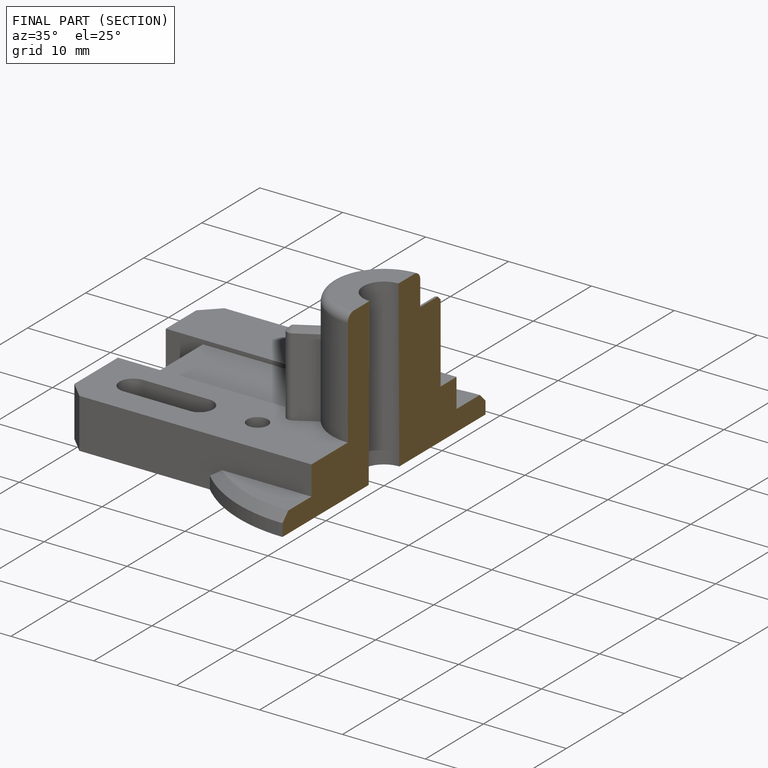
[diagram: finished part — half-section view (interior)]
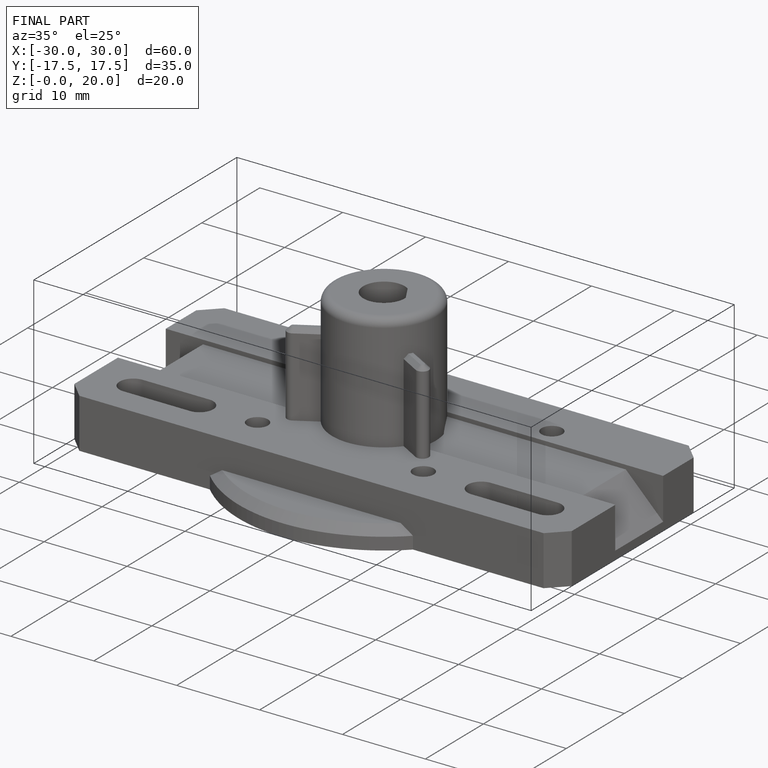
[diagram: finished part — iso view with bounding-box wireframe]
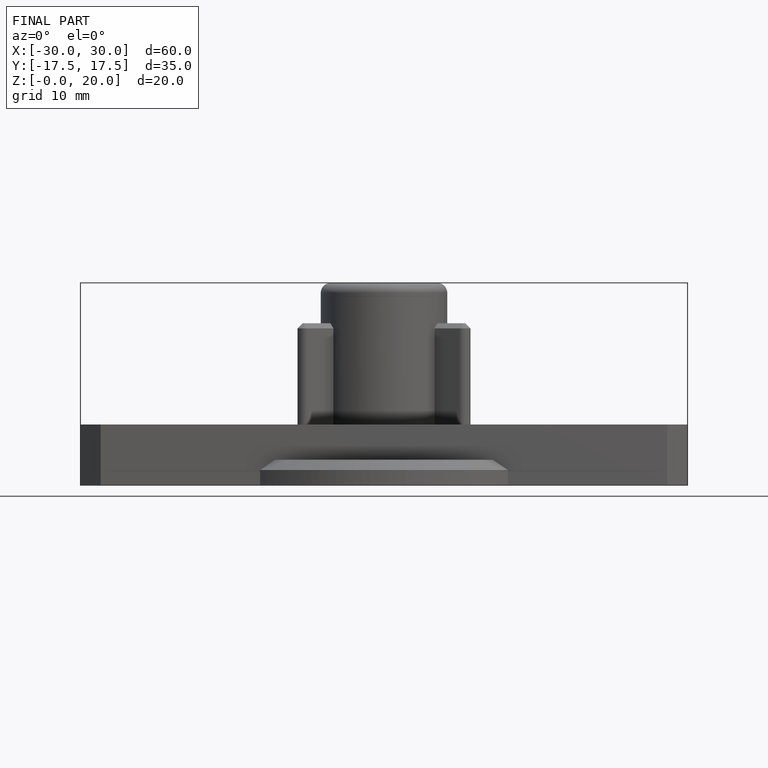
[diagram: finished part — front view with bounding-box wireframe]
